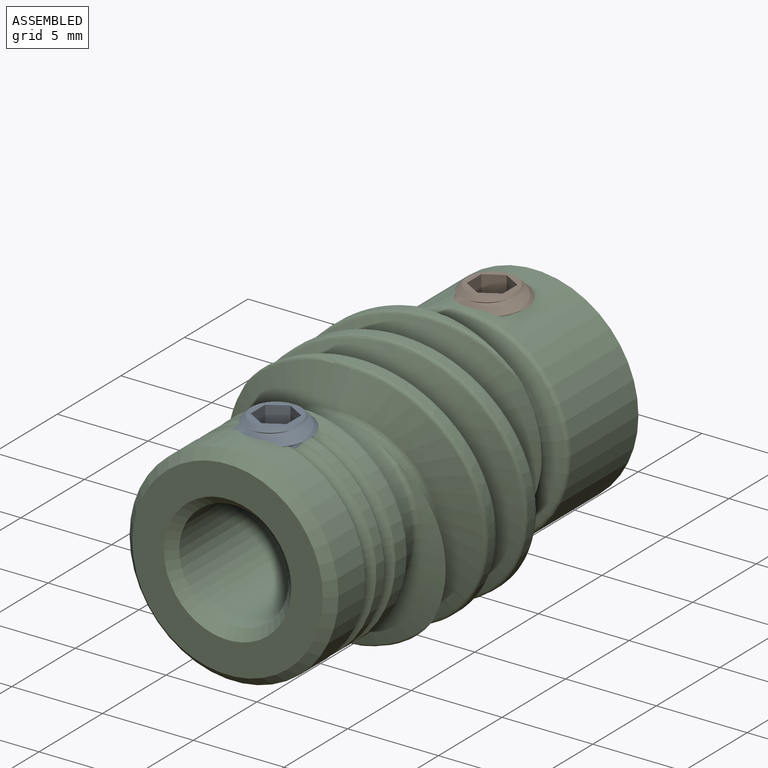
[diagram: assembled view]
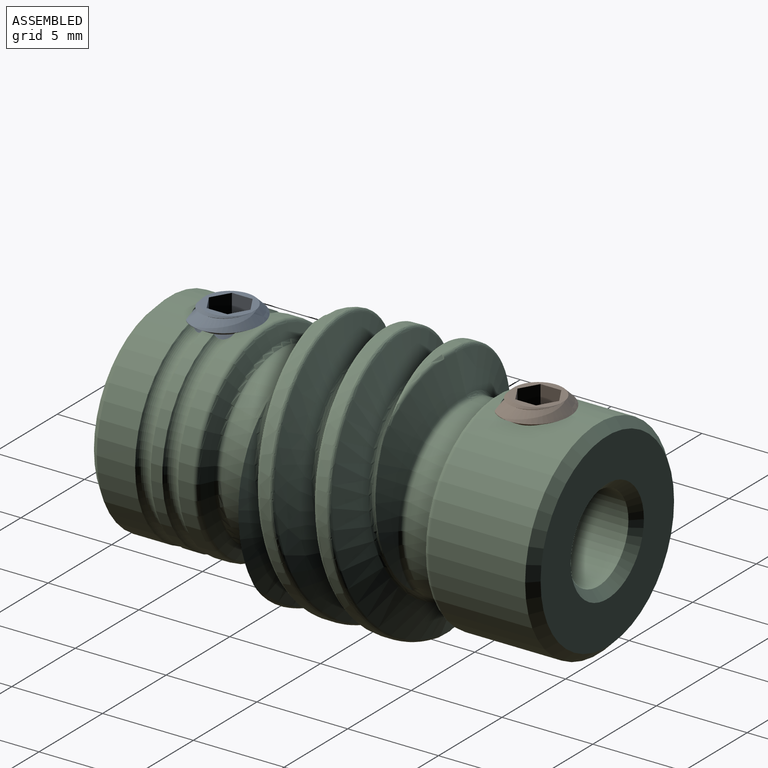
[diagram: assembled view, second angle]
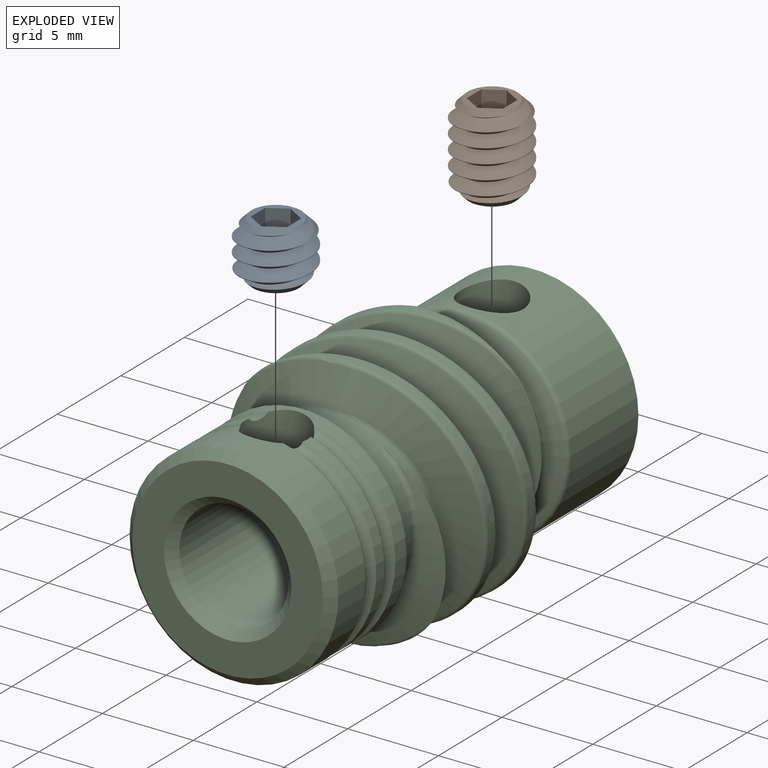
[diagram: exploded view]
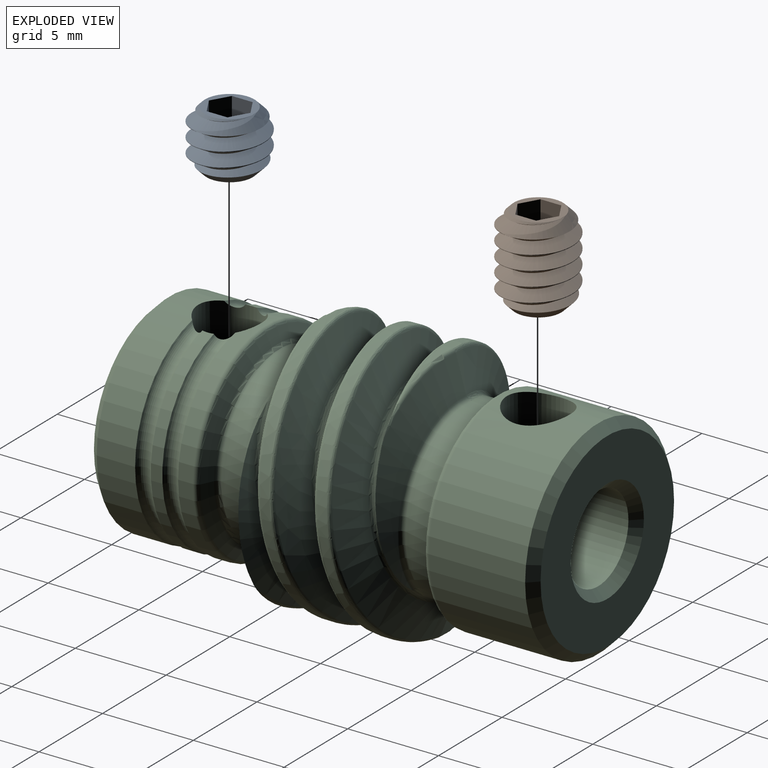
[diagram: exploded view, second angle]
ASSEMBLY  parts=3 mates=2
PART A: 16 faces, bbox 4x4x4.1 mm
  f0: cone r=1.02mm half-angle=60deg, axis (0,0,-1), area 3.7mm2, adj f1
  f1: plane 2.54x2.54mm, normal (0,0,-1), area 1.8mm2, adj f0,f3
  f2: cylinder r=1.99mm len=3.99mm, axis (0,0,-1), area 0.9mm2, adj f4,f5,f6,f7
  f3: cone r=1.99mm half-angle=45deg, axis (0,0,1), area 5mm2, adj f1,f4,f5,f7
  f4: cone r=1.99mm half-angle=45deg, axis (0,0,1), area 0.5mm2, adj f2,f3,f5,f7
  f5: bspline ~4.04x4.04mm, area 24.5mm2, adj f2,f3,f4,f6,f7,f14
  f6: cone r=1.99mm half-angle=45deg, axis (0,0,-1), area 4.4mm2, adj f2,f5,f7,f14
  f7: bspline ~4.04x4.04mm, area 24.5mm2, adj f2,f3,f4,f5,f6,f14
  f8: plane 1.78x0.99mm, normal (-0.5,-0.87,0), area 2mm2, adj f10,f11,f12,f14
  f9: plane 1.78x1.15mm, normal (1,0,0), area 2mm2, adj f10,f12,f13,f14
  f10: plane 1.78x0.99mm, normal (0.5,-0.87,0), area 2mm2, adj f8,f9,f12,f14
  f11: plane 1.78x1.15mm, normal (-1,0,0), area 2mm2, adj f8,f12,f14,f15
  f12: plane 2.29x1.98mm, normal (0,0,1), area 3.4mm2, adj f8,f9,f10,f11,f13,f15
  f13: plane 1.78x0.99mm, normal (0.5,0.87,0), area 2mm2, adj f9,f12,f14,f15
  f14: plane 2.72x2.71mm, normal (0,0,1), area 2.4mm2, adj f5,f6,f7,f8,f9,f10,f11,f13
  f15: plane 1.78x0.99mm, normal (-0.5,0.87,0), area 2mm2, adj f11,f12,f13,f14
PART B: 15 faces, bbox 4x4x5.7 mm
  f0: cone r=1.02mm half-angle=60deg, axis (0,0,-1), area 3.7mm2, adj f1
  f1: plane 2.54x2.54mm, normal (0,0,-1), area 1.8mm2, adj f0,f3
  f2: cylinder r=1.99mm len=3.99mm, axis (0,0,-1), area 1.6mm2, adj f3,f4,f5,f6
  f3: cone r=1.99mm half-angle=45deg, axis (0,0,1), area 5.4mm2, adj f1,f2,f4,f6
  f4: bspline ~5.27x4.04mm, area 40.4mm2, adj f2,f3,f5,f6,f13
  f5: cone r=1.99mm half-angle=45deg, axis (0,0,-1), area 4.5mm2, adj f2,f4,f6,f13
  f6: bspline ~5.27x4.04mm, area 40.5mm2, adj f2,f3,f4,f5,f13
  f7: plane 1.78x0.99mm, normal (-0.5,-0.87,0), area 2mm2, adj f9,f10,f11,f13
  f8: plane 1.78x1.15mm, normal (1,0,0), area 2mm2, adj f9,f11,f12,f13
  f9: plane 1.78x0.99mm, normal (0.5,-0.87,0), area 2mm2, adj f7,f8,f11,f13
  f10: plane 1.78x1.15mm, normal (-1,0,0), area 2mm2, adj f7,f11,f13,f14
  f11: plane 2.29x1.98mm, normal (0,0,1), area 3.4mm2, adj f7,f8,f9,f10,f12,f14
  f12: plane 1.78x0.99mm, normal (0.5,0.87,0), area 2mm2, adj f8,f11,f13,f14
  f13: plane 2.72x2.71mm, normal (0,0,1), area 2.4mm2, adj f4,f5,f6,f7,f8,f9,f10,f12
  f14: plane 1.78x0.99mm, normal (-0.5,0.87,0), area 2mm2, adj f10,f11,f12,f13
PART C: 67 faces, bbox 14.1x24.6x15.2 mm
  f0: torus R=6mm, axis (0,1,0), area 33.5mm2, adj f26,f27,f28
  f1: torus R=6mm, axis (0,1,0), area 33.5mm2, adj f25,f26,f27
  f2: cylinder r=1.73mm len=3.45mm, axis (0,0,-1), area 36.6mm2, adj f14,f17
  f3: cone r=5.25mm half-angle=45deg, axis (0,1,0), area 24.4mm2, adj f25,f31
  f4: cone r=5.75mm half-angle=45deg, axis (0,-1,0), area 24.4mm2, adj f14,f30
  f5: cone r=3.51mm half-angle=45deg, axis (0,-1,0), area 14.5mm2, adj f19,f31
  f6: cone r=2.38mm half-angle=45deg, axis (0,1,0), area 11.7mm2, adj f17,f30
  f7: torus R=5.45mm, axis (0,1,0), area 12.2mm2, adj f15,f28
  f8: torus R=5.45mm, axis (0,1,0), area 12.2mm2, adj f13,f14
  f9: torus R=5.05mm, axis (0,-1,0), area 10.3mm2, adj f15,f22
  f10: torus R=5.05mm, axis (0,1,0), area 10.3mm2, adj f13,f23
  f11: torus R=5.05mm, axis (0,1,0), area 4.1mm2, adj f22,f24,f57,f58
  f12: torus R=5.05mm, axis (0,1,0), area 4.1mm2, adj f23,f29,f48,f51
  f13: cone r=5.75mm half-angle=65deg, axis (0,1,0), area 23.8mm2, adj f8,f10
  f14: cylinder r=5.75mm len=11.5mm, axis (0,-1,0), area 182.3mm2, adj f2,f4,f8
  f15: cone r=4.75mm half-angle=65deg, axis (0,-1,0), area 23.8mm2, adj f7,f9
  f16: cone r=9mm half-angle=69.7deg, axis (0,-1,0), area 19.2mm2, adj f32,f37,f38,f39,f47,f63
  f17: cylinder r=2.38mm len=12.59mm, axis (0,1,0), area 177.7mm2, adj f2,f6,f18
  f18: cone r=2.38mm half-angle=67.5deg, axis (0,-1,0), area 11.6mm2, adj f17,f19
  f19: cylinder r=3.01mm len=10.75mm, axis (0,1,0), area 193.5mm2, adj f5,f18,f26
  f20: cylinder r=7mm len=14mm, axis (0,-1,0), area 22.1mm2, adj f59,f60,f61,f62
  f21: cylinder r=7mm len=14mm, axis (0,-1,0), area 22.1mm2, adj f63,f64,f65,f66
  f22: cylinder r=4.75mm len=9.5mm, axis (0,1,0), area 34.8mm2, adj f9,f11,f52,f53,f54,f55,f56,f57
  f23: cylinder r=4.75mm len=9.5mm, axis (0,1,0), area 34.8mm2, adj f10,f12,f45,f46,f47,f48,f49,f50
  f24: cone r=4.75mm half-angle=69.7deg, axis (0,1,0), area 19.2mm2, adj f11,f32,f37,f38,f40,f64,f66
  f25: cylinder r=5.75mm len=11.5mm, axis (0,-1,0), area 75.8mm2, adj f1,f3,f26
  f26: cylinder r=1.73mm len=3.45mm, axis (0,0,-1), area 30.6mm2, adj f0,f1,f19,f25,f27,f28
  f27: cylinder r=5.75mm len=11.5mm, axis (0,-1,0), area 20.7mm2, adj f0,f1,f26
  f28: cylinder r=5.75mm len=11.5mm, axis (0,-1,0), area 29.1mm2, adj f0,f7,f26
  f29: cone r=9mm half-angle=69.7deg, axis (0,-1,0), area 19.1mm2, adj f12,f34,f36,f42,f43,f60,f62
  f30: plane 10.5x10.5mm, normal (0,1,0), area 60.6mm2, adj f4,f6
  f31: plane 10.5x10.5mm, normal (0,-1,0), area 47.9mm2, adj f3,f5
  f32: bspline ~10.15x9.89mm, area 15.2mm2, adj f16,f24,f33,f37,f49,f57
  f33: bspline ~9.74x9.5mm, area 9.4mm2, adj f32,f34,f50,f55
  f34: bspline ~10.15x9.89mm, area 15.2mm2, adj f29,f33,f36,f51,f53
  f35: bspline ~2.2x0.73mm, area 0mm2, adj f44,f53
  f36: bspline ~14.44x14.07mm, area 92.8mm2, adj f29,f34,f44,f60
  f37: bspline ~14.44x14.07mm, area 92.8mm2, adj f16,f24,f32,f64
  f38: bspline ~14.44x14.07mm, area 92.8mm2, adj f16,f24,f39,f65
  f39: bspline ~10.15x9.89mm, area 15.2mm2, adj f16,f38,f41,f45,f58
  f40: bspline ~2.2x0.73mm, area 0mm2, adj f24,f58
  f41: cylinder r=4.75mm len=9.5mm, axis (0,-1,0), area 9.4mm2, adj f39,f42,f46,f56
  f42: bspline ~10.15x9.89mm, area 15.2mm2, adj f29,f41,f43,f44,f48,f54
  f43: bspline ~14.44x14.07mm, area 92.8mm2, adj f29,f42,f44,f61
  f44: cone r=4.75mm half-angle=69.7deg, axis (0,1,0), area 19.2mm2, adj f35,f36,f42,f43,f52,f59
  f45: bspline ~1.43x1.08mm, area 0.3mm2, adj f23,f39,f46,f47
  f46: cylinder r=4.43mm len=1mm, axis (0.21,0.97,0.12), area 0mm2, adj f23,f41,f45,f48
  f47: torus R=5.05mm, axis (0,1,0), area 4.1mm2, adj f16,f23,f45,f49
  f48: bspline ~0.98x0.39mm, area 0.1mm2, adj f12,f23,f42,f46
  f49: bspline ~0.98x0.39mm, area 0.1mm2, adj f23,f32,f47,f50
  f50: bspline ~0.99x0.43mm, area 0mm2, adj f23,f33,f49,f51
  f51: bspline ~1.43x1.08mm, area 0.3mm2, adj f12,f23,f34,f50
  f52: torus R=5.05mm, axis (0,1,0), area 4.1mm2, adj f22,f44,f53,f54
  f53: bspline ~0.98x0.39mm, area 0.1mm2, adj f22,f34,f35,f52,f55
  f54: bspline ~1.43x1.08mm, area 0.3mm2, adj f22,f42,f52,f56
  f55: bspline ~0.99x0.43mm, area 0mm2, adj f22,f33,f53,f57
  f56: cylinder r=4.43mm len=1mm, axis (0.21,-0.97,-0.12), area 0mm2, adj f22,f41,f54,f58
  f57: bspline ~1.43x1.08mm, area 0.3mm2, adj f11,f22,f32,f55
  f58: bspline ~0.98x0.39mm, area 0.2mm2, adj f11,f22,f39,f40,f56
  f59: torus R=6.75mm, axis (0,-1,0), area 1.5mm2, adj f20,f44,f60,f61
  f60: bspline ~14.02x14.01mm, area 14.7mm2, adj f20,f29,f36,f59,f62
  f61: bspline ~14x13.99mm, area 14.6mm2, adj f20,f43,f59,f62
  f62: torus R=6.75mm, axis (0,1,0), area 1.5mm2, adj f20,f29,f60,f61
  f63: torus R=6.75mm, axis (0,1,0), area 1.5mm2, adj f16,f21,f64,f65
  f64: bspline ~14.02x14.01mm, area 14.7mm2, adj f21,f24,f37,f63,f66
  f65: bspline ~14x13.99mm, area 14.6mm2, adj f21,f38,f63,f66
  f66: torus R=6.75mm, axis (0,-1,0), area 1.5mm2, adj f21,f24,f64,f65
PLACE A t=(0,-8.5,3.09)mm
PLACE B t=(0,8.5,1.51)mm
PLACE C at identity
MATE fastened A.f3 <-> C.f26  axis (0,0,1) through (0,-8.5,6.27)mm
MATE fastened B.f0 <-> C.f2  axis (0,0,1) through (0,8.5,6.27)mm
